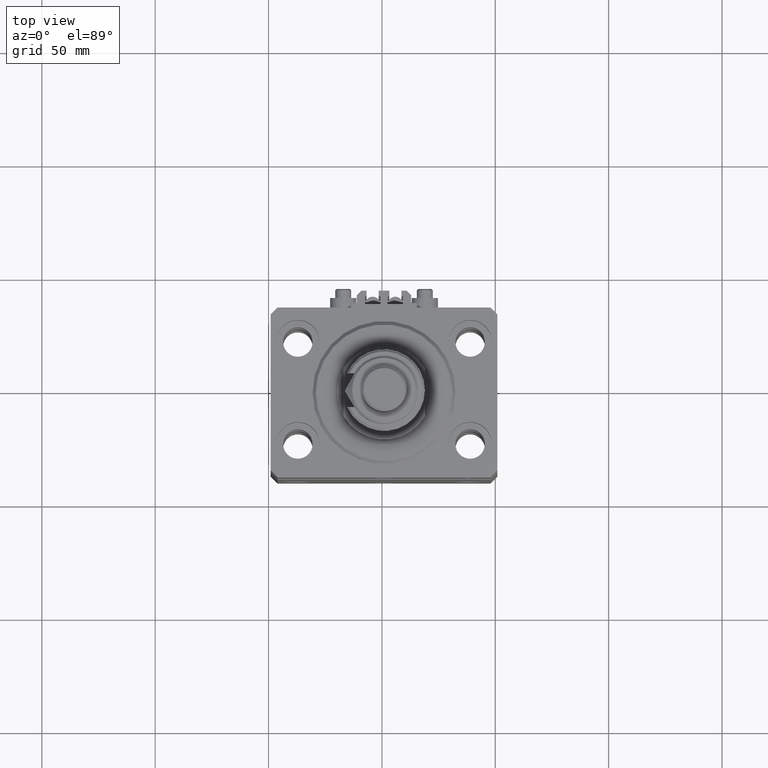
[diagram: clean part render]
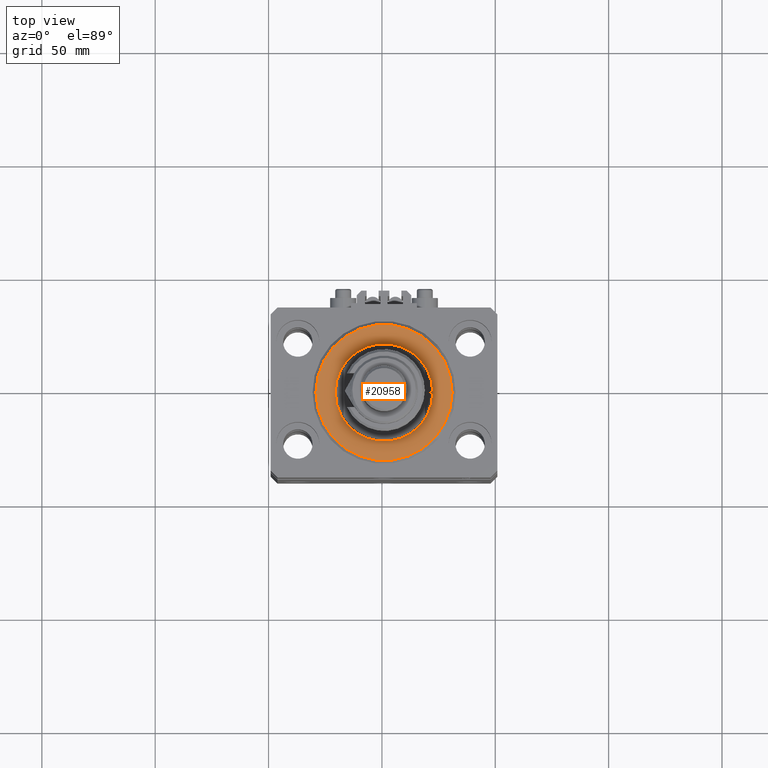
[diagram: same view with one face highlighted and labeled with its STEP entity id]
A machine part, top view. The second image highlights one B-rep face of the part: STEP entity #20958.
In plain terms, the highlighted planar face has unit normal (0, 0, -1).
Its self-contained STEP definition (entity closure, byte-faithful):
#2598 = AXIS2_PLACEMENT_3D ( 'NONE', #7976, #51007, #38891 ) ;
#7621 = CIRCLE ( 'NONE', #2598, 21.50000000000000000 ) ;
#7976 = CARTESIAN_POINT ( 'NONE',  ( 0.000000000000000000, 0.000000000000000000, 0.000000000000000000 ) ) ;
#9751 = EDGE_LOOP ( 'NONE', ( #16118, #21920 ) ) ;
#9772 = CARTESIAN_POINT ( 'NONE',  ( 0.000000000000000000, 0.000000000000000000, 0.000000000000000000 ) ) ;
#11043 = CIRCLE ( 'NONE', #40345, 21.50000000000000000 ) ;
#12283 = VERTEX_POINT ( 'NONE', #38068 ) ;
#14320 = DIRECTION ( 'NONE',  ( -0.000000000000000000, -0.000000000000000000, -1.000000000000000000 ) ) ;
#16118 = ORIENTED_EDGE ( 'NONE', *, *, #20864, .T. ) ;
#17378 = AXIS2_PLACEMENT_3D ( 'NONE', #32106, #48388, #28430 ) ;
#17835 = CARTESIAN_POINT ( 'NONE',  ( 21.50000000000000000, 0.000000000000000000, -2.168404344971008868E-16 ) ) ;
#20464 = ORIENTED_EDGE ( 'NONE', *, *, #51498, .T. ) ;
#20864 = EDGE_CURVE ( 'NONE', #47559, #12283, #45871, .T. ) ;
#20958 = ADVANCED_FACE ( 'NONE', ( #32360, #47347 ), #51555, .F. ) ;
#21920 = ORIENTED_EDGE ( 'NONE', *, *, #25915, .T. ) ;
#22337 = DIRECTION ( 'NONE',  ( 0.000000000000000000, 0.000000000000000000, 1.000000000000000000 ) ) ;
#24735 = VERTEX_POINT ( 'NONE', #17835 ) ;
#25915 = EDGE_CURVE ( 'NONE', #12283, #47559, #33340, .T. ) ;
#27809 = VERTEX_POINT ( 'NONE', #29732 ) ;
#28333 = AXIS2_PLACEMENT_3D ( 'NONE', #49720, #46029, #46293 ) ;
#28430 = DIRECTION ( 'NONE',  ( 1.000000000000000000, 0.000000000000000000, -0.000000000000000000 ) ) ;
#29732 = CARTESIAN_POINT ( 'NONE',  ( -21.50000000000000000, 2.632990618166809630E-15, -2.168404344971008868E-16 ) ) ;
#30547 = CARTESIAN_POINT ( 'NONE',  ( 0.000000000000000000, 0.000000000000000000, 0.000000000000000000 ) ) ;
#31014 = ORIENTED_EDGE ( 'NONE', *, *, #36127, .T. ) ;
#32106 = CARTESIAN_POINT ( 'NONE',  ( 0.000000000000000000, 0.000000000000000000, 0.000000000000000000 ) ) ;
#32360 = FACE_BOUND ( 'NONE', #41790, .T. ) ;
#33340 = CIRCLE ( 'NONE', #28333, 29.99999999999999289 ) ;
#33878 = DIRECTION ( 'NONE',  ( 1.000000000000000000, 0.000000000000000000, 0.000000000000000000 ) ) ;
#36127 = EDGE_CURVE ( 'NONE', #24735, #27809, #11043, .T. ) ;
#38068 = CARTESIAN_POINT ( 'NONE',  ( -29.99999999999999289, 3.765788907378110539E-15, 0.000000000000000000 ) ) ;
#38891 = DIRECTION ( 'NONE',  ( 1.000000000000000000, 0.000000000000000000, 0.000000000000000000 ) ) ;
#40345 = AXIS2_PLACEMENT_3D ( 'NONE', #9772, #22337, #33878 ) ;
#41790 = EDGE_LOOP ( 'NONE', ( #31014, #20464 ) ) ;
#43364 = AXIS2_PLACEMENT_3D ( 'NONE', #30547, #14320, #46057 ) ;
#44708 = CARTESIAN_POINT ( 'NONE',  ( 29.99999999999999289, 0.000000000000000000, 0.000000000000000000 ) ) ;
#45871 = CIRCLE ( 'NONE', #43364, 29.99999999999999289 ) ;
#46029 = DIRECTION ( 'NONE',  ( -0.000000000000000000, -0.000000000000000000, -1.000000000000000000 ) ) ;
#46057 = DIRECTION ( 'NONE',  ( 1.000000000000000000, 0.000000000000000000, 0.000000000000000000 ) ) ;
#46293 = DIRECTION ( 'NONE',  ( 1.000000000000000000, 0.000000000000000000, 0.000000000000000000 ) ) ;
#47347 = FACE_OUTER_BOUND ( 'NONE', #9751, .T. ) ;
#47559 = VERTEX_POINT ( 'NONE', #44708 ) ;
#48388 = DIRECTION ( 'NONE',  ( 0.000000000000000000, 0.000000000000000000, 1.000000000000000000 ) ) ;
#49720 = CARTESIAN_POINT ( 'NONE',  ( 0.000000000000000000, 0.000000000000000000, 0.000000000000000000 ) ) ;
#51007 = DIRECTION ( 'NONE',  ( 0.000000000000000000, 0.000000000000000000, 1.000000000000000000 ) ) ;
#51498 = EDGE_CURVE ( 'NONE', #27809, #24735, #7621, .T. ) ;
#51555 = PLANE ( 'NONE',  #17378 ) ;